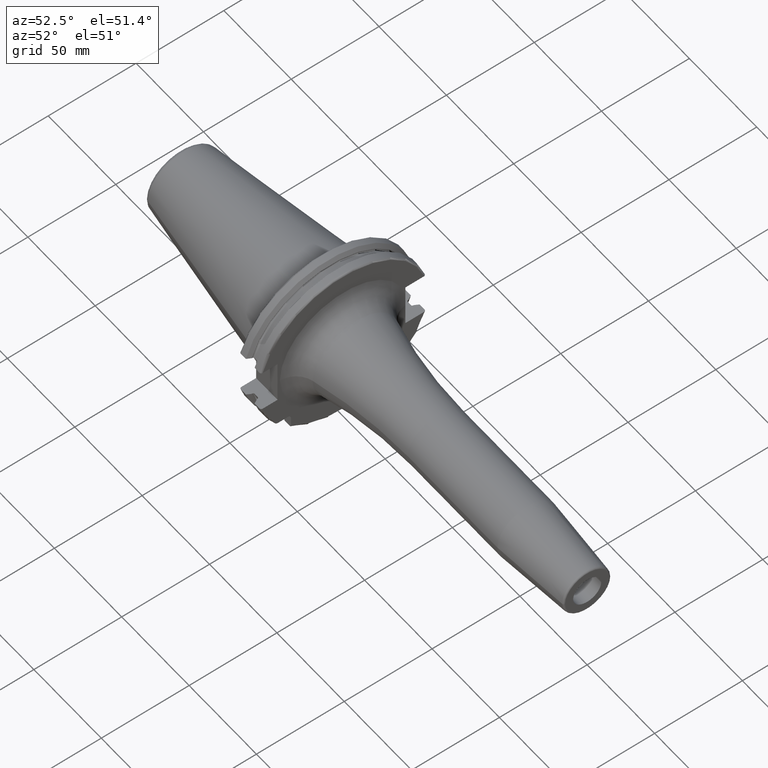
[diagram: clean part render]
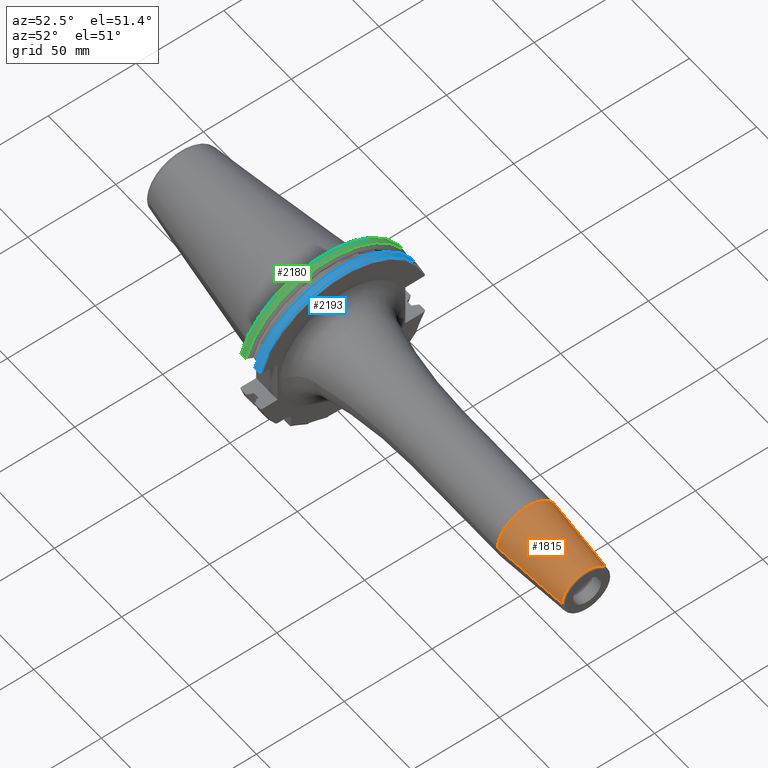
[diagram: same view with three faces highlighted in distinct colors, each labeled with its STEP entity id]
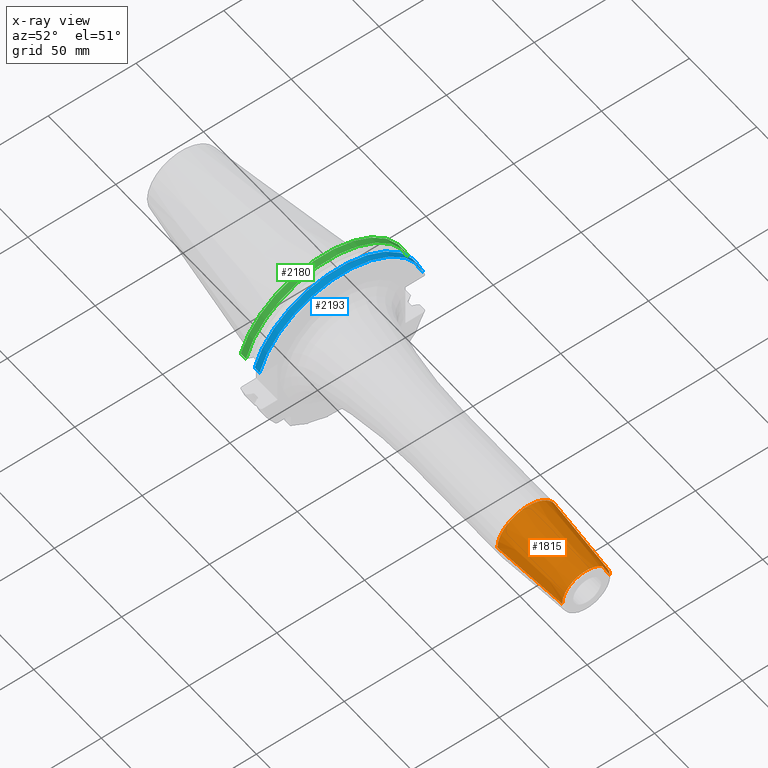
[diagram: x-ray of the same camera — body ghosted, the three highlighted faces saturated]
A machine part, auxiliary view with three faces highlighted in distinct colors.
The next image is the same camera in x-ray (body ghosted, the three faces saturated) — at least one of them is partly hidden behind the body in this view.
Their STEP definitions:

[orange] entity #1815 — the highlighted conical surface has half-angle 4.5 deg.
#239=CARTESIAN_POINT('',(1.555282834234E2,0.E0,0.E0));
#240=DIRECTION('',(1.E0,0.E0,0.E0));
#241=DIRECTION('',(0.E0,1.E0,0.E0));
#242=AXIS2_PLACEMENT_3D('',#239,#240,#241);
#244=CARTESIAN_POINT('',(1.990784590957E2,0.E0,0.E0));
#245=DIRECTION('',(-1.E0,0.E0,0.E0));
#246=DIRECTION('',(0.E0,-1.E0,0.E0));
#247=AXIS2_PLACEMENT_3D('',#244,#245,#246);
#264=DIRECTION('',(-9.969173337331E-1,7.845909572784E-2,6.257929142752E-14));
#265=VECTOR('',#264,4.368484145948E1);
#266=CARTESIAN_POINT('',(1.990784590957E2,1.357252684207E1,
-2.731684525099E-12));
#267=LINE('',#266,#265);
#268=DIRECTION('',(-9.969173337331E-1,-7.845909572784E-2,-6.256993807104E-14));
#269=VECTOR('',#268,4.368484145948E1);
#270=CARTESIAN_POINT('',(1.990784590957E2,-1.357252684207E1,
2.731275925204E-12));
#271=LINE('',#270,#269);
#1470=CARTESIAN_POINT('',(1.555282834234E2,1.7E1,0.E0));
#1471=CARTESIAN_POINT('',(1.555282834234E2,-1.7E1,0.E0));
#1472=VERTEX_POINT('',#1470);
#1473=VERTEX_POINT('',#1471);
#1474=CARTESIAN_POINT('',(1.990784590957E2,1.357252684207E1,0.E0));
#1475=CARTESIAN_POINT('',(1.990784590957E2,-1.357252684207E1,0.E0));
#1476=VERTEX_POINT('',#1474);
#1477=VERTEX_POINT('',#1475);
#1801=CARTESIAN_POINT('',(1.773033712596E2,0.E0,0.E0));
#1802=DIRECTION('',(-1.E0,0.E0,0.E0));
#1803=DIRECTION('',(0.E0,1.E0,0.E0));
#1804=AXIS2_PLACEMENT_3D('',#1801,#1802,#1803);
#1805=CONICAL_SURFACE('',#1804,1.528626342104E1,4.5E0);
#1807=ORIENTED_EDGE('',*,*,#1806,.F.);
#1809=ORIENTED_EDGE('',*,*,#1808,.T.);
#1810=ORIENTED_EDGE('',*,*,#1795,.F.);
#1812=ORIENTED_EDGE('',*,*,#1811,.F.);
#1813=EDGE_LOOP('',(#1807,#1809,#1810,#1812));
#1814=FACE_OUTER_BOUND('',#1813,.F.);
#1815=ADVANCED_FACE('',(#1814),#1805,.T.);
#243=CIRCLE('',#242,1.7E1);
#248=CIRCLE('',#247,1.357252684207E1);
#1795=EDGE_CURVE('',#1472,#1473,#243,.T.);
#1806=EDGE_CURVE('',#1477,#1476,#248,.T.);
#1808=EDGE_CURVE('',#1477,#1473,#271,.T.);
#1811=EDGE_CURVE('',#1476,#1472,#267,.T.);

[blue] entity #2193 — the highlighted cylindrical surface (partial cylindrical patch) has radius 48.7375 mm, axis along (1, 0, 0).
#477=CARTESIAN_POINT('',(1.441537838583E1,4.699929686974E1,1.29E1));
#489=CARTESIAN_POINT('',(1.441537838583E1,-4.699929686974E1,1.29E1));
#509=DIRECTION('',(1.E0,0.E0,0.E0));
#510=VECTOR('',#509,3.634621614173E0);
#511=CARTESIAN_POINT('',(1.441537838583E1,4.699929686974E1,1.29E1));
#512=LINE('',#511,#510);
#513=CARTESIAN_POINT('',(1.805E1,0.E0,0.E0));
#514=DIRECTION('',(1.E0,0.E0,0.E0));
#515=DIRECTION('',(0.E0,9.643354064066E-1,2.646832521159E-1));
#516=AXIS2_PLACEMENT_3D('',#513,#514,#515);
#518=DIRECTION('',(1.E0,0.E0,0.E0));
#519=VECTOR('',#518,3.634621614173E0);
#520=CARTESIAN_POINT('',(1.441537838583E1,-4.699929686974E1,1.29E1));
#521=LINE('',#520,#519);
#522=CARTESIAN_POINT('',(1.441537838583E1,0.E0,0.E0));
#523=DIRECTION('',(1.E0,0.E0,0.E0));
#524=DIRECTION('',(0.E0,9.643354064066E-1,2.646832521159E-1));
#525=AXIS2_PLACEMENT_3D('',#522,#523,#524);
#1352=VERTEX_POINT('',#477);
#1353=VERTEX_POINT('',#489);
#1384=CARTESIAN_POINT('',(1.805E1,4.699929686974E1,1.29E1));
#1385=VERTEX_POINT('',#1384);
#1388=CARTESIAN_POINT('',(1.805E1,-4.699929686974E1,1.29E1));
#1389=VERTEX_POINT('',#1388);
#2181=CARTESIAN_POINT('',(-1.076325E2,0.E0,0.E0));
#2182=DIRECTION('',(1.E0,0.E0,0.E0));
#2183=DIRECTION('',(0.E0,-1.E0,0.E0));
#2184=AXIS2_PLACEMENT_3D('',#2181,#2182,#2183);
#2185=CYLINDRICAL_SURFACE('',#2184,4.87375E1);
#2186=ORIENTED_EDGE('',*,*,#2010,.T.);
#2188=ORIENTED_EDGE('',*,*,#2187,.T.);
#2189=ORIENTED_EDGE('',*,*,#2055,.F.);
#2190=ORIENTED_EDGE('',*,*,#2161,.F.);
#2191=EDGE_LOOP('',(#2186,#2188,#2189,#2190));
#2192=FACE_OUTER_BOUND('',#2191,.F.);
#2193=ADVANCED_FACE('',(#2192),#2185,.T.);
#517=CIRCLE('',#516,4.87375E1);
#526=CIRCLE('',#525,4.87375E1);
#2010=EDGE_CURVE('',#1352,#1385,#512,.T.);
#2055=EDGE_CURVE('',#1353,#1389,#521,.T.);
#2161=EDGE_CURVE('',#1352,#1353,#526,.T.);
#2187=EDGE_CURVE('',#1385,#1389,#517,.T.);

[green] entity #2180 — the highlighted cylindrical surface (partial cylindrical patch) has radius 48.7375 mm, axis along (1, 0, 0).
#353=CARTESIAN_POINT('',(7.934621614173E0,4.699929686974E1,1.29E1));
#365=CARTESIAN_POINT('',(7.934621614173E0,-4.699929686974E1,1.29E1));
#496=DIRECTION('',(1.E0,0.E0,0.E0));
#497=VECTOR('',#496,3.734621614173E0);
#498=CARTESIAN_POINT('',(4.2E0,4.699929686974E1,1.29E1));
#499=LINE('',#498,#497);
#500=CARTESIAN_POINT('',(7.934621614173E0,0.E0,0.E0));
#501=DIRECTION('',(1.E0,0.E0,0.E0));
#502=DIRECTION('',(0.E0,9.643354064066E-1,2.646832521159E-1));
#503=AXIS2_PLACEMENT_3D('',#500,#501,#502);
#505=DIRECTION('',(1.E0,0.E0,0.E0));
#506=VECTOR('',#505,3.734621614173E0);
#507=CARTESIAN_POINT('',(4.2E0,-4.699929686974E1,1.29E1));
#508=LINE('',#507,#506);
#538=CARTESIAN_POINT('',(4.2E0,0.E0,0.E0));
#539=DIRECTION('',(1.E0,0.E0,0.E0));
#540=DIRECTION('',(0.E0,9.643354064066E-1,2.646832521159E-1));
#541=AXIS2_PLACEMENT_3D('',#538,#539,#540);
#1354=VERTEX_POINT('',#353);
#1355=VERTEX_POINT('',#365);
#1382=CARTESIAN_POINT('',(4.2E0,4.699929686974E1,1.29E1));
#1383=VERTEX_POINT('',#1382);
#1386=CARTESIAN_POINT('',(4.2E0,-4.699929686974E1,1.29E1));
#1387=VERTEX_POINT('',#1386);
#2168=CARTESIAN_POINT('',(-1.076325E2,0.E0,0.E0));
#2169=DIRECTION('',(1.E0,0.E0,0.E0));
#2170=DIRECTION('',(0.E0,-1.E0,0.E0));
#2171=AXIS2_PLACEMENT_3D('',#2168,#2169,#2170);
#2172=CYLINDRICAL_SURFACE('',#2171,4.87375E1);
#2173=ORIENTED_EDGE('',*,*,#2000,.T.);
#2174=ORIENTED_EDGE('',*,*,#2034,.T.);
#2175=ORIENTED_EDGE('',*,*,#2066,.F.);
#2177=ORIENTED_EDGE('',*,*,#2176,.F.);
#2178=EDGE_LOOP('',(#2173,#2174,#2175,#2177));
#2179=FACE_OUTER_BOUND('',#2178,.F.);
#2180=ADVANCED_FACE('',(#2179),#2172,.T.);
#504=CIRCLE('',#503,4.87375E1);
#542=CIRCLE('',#541,4.87375E1);
#2000=EDGE_CURVE('',#1383,#1354,#499,.T.);
#2034=EDGE_CURVE('',#1354,#1355,#504,.T.);
#2066=EDGE_CURVE('',#1387,#1355,#508,.T.);
#2176=EDGE_CURVE('',#1383,#1387,#542,.T.);